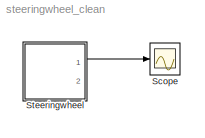
MODEL steeringwheel_clean
KIND model
BLOCK [Scope] Scope
  Floating = off
  NumInputPorts = 1
  Ports = [1]
  SID = 29
  ScopeSpecificationString = Simulink.scopes.TimeScopeBlockCfg('CurrentConfiguration', extmgr.ConfigurationSet(extmgr.Configuration('Core','General UI',true),extmgr.Configuration('Core','Source UI',true),extmgr.Configuration('Sources','WiredSimulink',true),extmgr.Configuration('Visuals','Time Domain',true),extmgr.Configuration('Tools','Plot Navigation',true),extmgr.Configuration('Tools','Measurements',true)),'Version','2018b'...<+1ch>
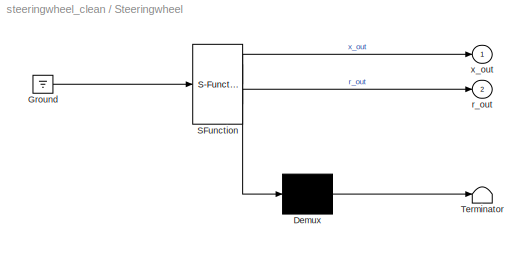
BLOCK [SubSystem] Steeringwheel
  ErrorFcn = Stateflow.Translate.translate
  PermitHierarchicalResolution = ExplicitOnly
  Ports = [0, 2]
  RequestExecContextInheritance = off
  SFBlockType = Chart
  SID = 28
  TreatAsAtomicUnit = on
BLOCK [Demux] Steeringwheel/ Demux 
  Outputs = 1
  Ports = [1, 1]
  SID = 28::90
BLOCK [Ground] Steeringwheel/ Ground 
  SID = 28::92
BLOCK [S-Function] Steeringwheel/ SFunction 
  EnableBusSupport = on
  FunctionName = sf_sfun
  PortCounts = [1 3]
  Ports = [1, 3]
  SFcnIsStateOwnerBlock = off
  SFunctionDeploymentMode = off
  SID = 28::89
  Tag = Stateflow S-Function steeringwheel_clean 2
BLOCK [Terminator] Steeringwheel/ Terminator 
  SID = 28::91
BLOCK [Outport] Steeringwheel/r_out
  IconDisplay = Port number
  Port = 2
  SID = 28::95
BLOCK [Outport] Steeringwheel/x_out
  IconDisplay = Port number
  SID = 28::93
LINE Steeringwheel/ Demux :1 -> Steeringwheel/ Terminator :1
LINE Steeringwheel/ Ground :1 -> Steeringwheel/ SFunction :1
LINE Steeringwheel/ SFunction :1 -> Steeringwheel/ Demux :1
LINE Steeringwheel/ SFunction :2 -> Steeringwheel/x_out:1
LINE Steeringwheel/ SFunction :3 -> Steeringwheel/r_out:1
LINE Steeringwheel:1 -> Scope:1
CHART Steeringwheel states=2 transitions=3
  STATE_LABEL 'LeftTurn\\ndu:\\nr_dot = 1;\\nr_out = r;\\nx_out = cos(r);\\n'
  STATE_LABEL 'RightTurn\\ndu:\\nr_dot = -3*pi;\\nr_out = r;\\nx_out = cos(r);'
